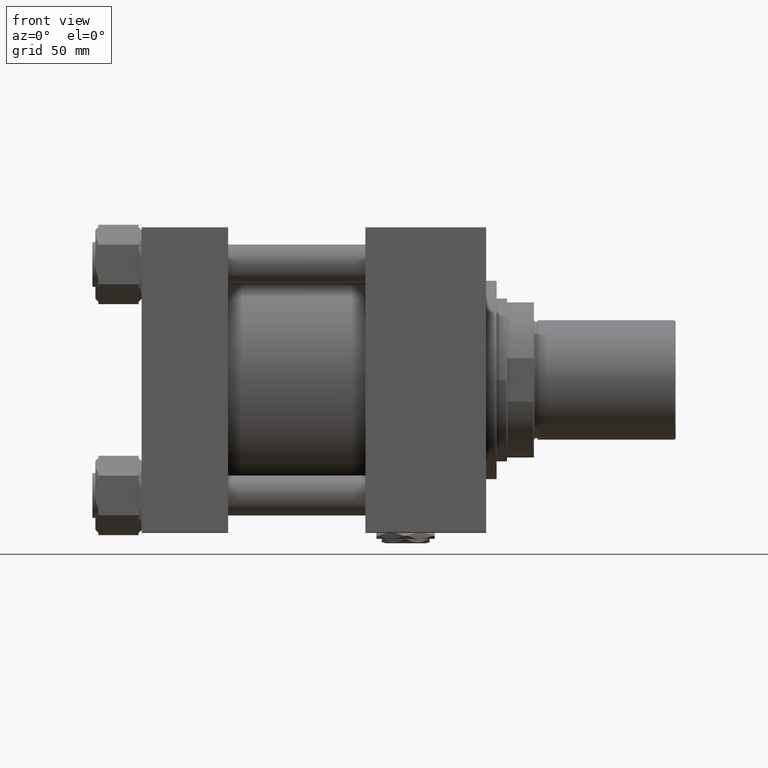
[diagram: clean part render]
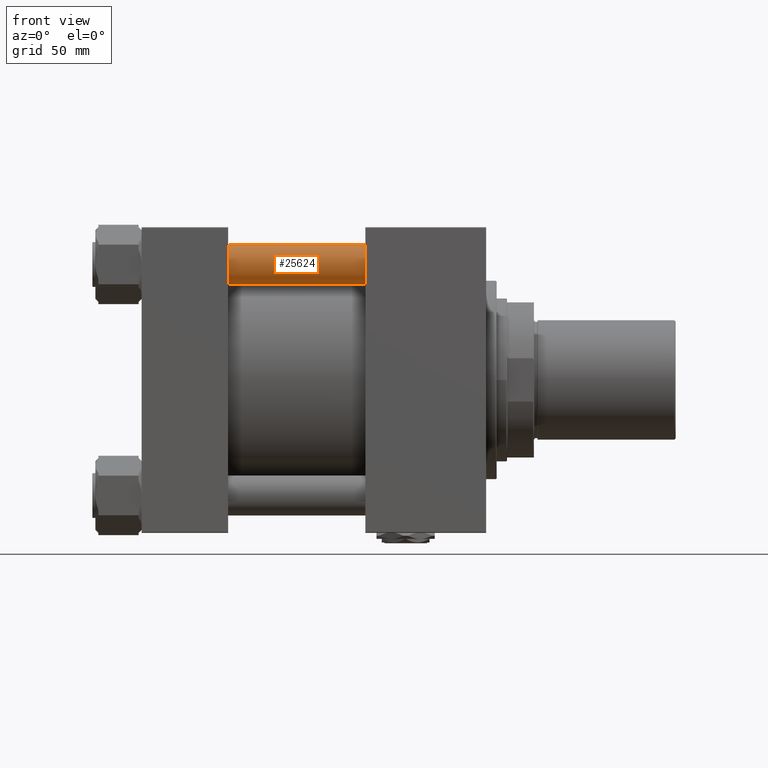
[diagram: same view with one face highlighted and labeled with its STEP entity id]
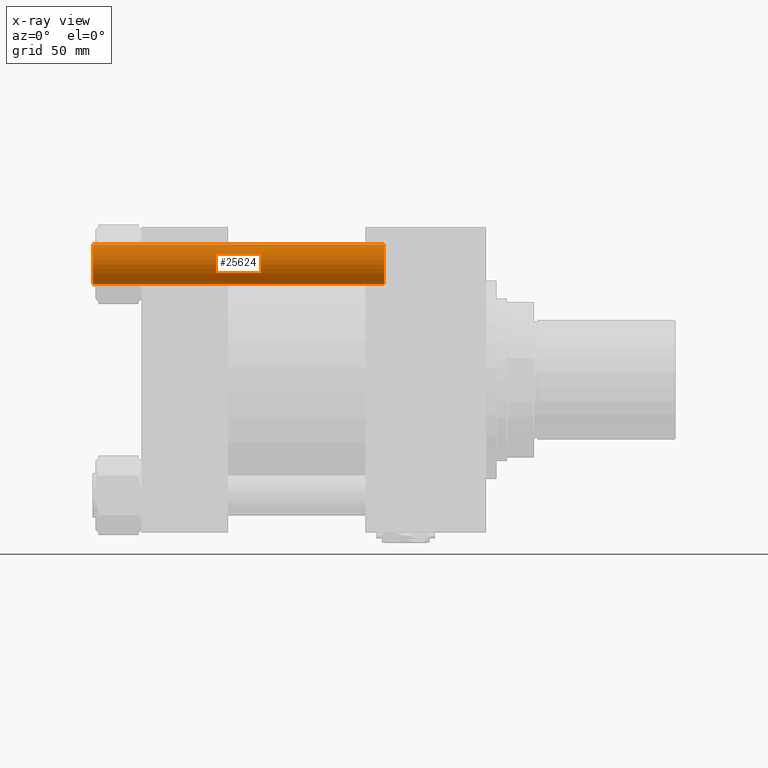
[diagram: x-ray of the same camera — body ghosted, the highlighted face saturated]
A machine part, front view. The second image highlights one B-rep face of the part: STEP entity #25624.
The next image is the same camera in x-ray: the body ghosted, the highlighted face saturated — about 0% of this face is hidden behind the body in this view.
In plain terms, the highlighted cylindrical surface (edge-blend (fillet) strip) has radius 13.5 mm, axis along (1, 0, -0).
Its self-contained STEP definition (entity closure, byte-faithful):
#1878 = DIRECTION ( 'NONE',  ( -1.000000000000000000, 0.000000000000000000, 0.000000000000000000 ) ) ;
#2020 = EDGE_LOOP ( 'NONE', ( #43403, #19182, #8719, #37262 ) ) ;
#8719 = ORIENTED_EDGE ( 'NONE', *, *, #47934, .T. ) ;
#9423 = CARTESIAN_POINT ( 'NONE',  ( -13.50000000000000000, 0.000000000000000000, 196.0000000000000000 ) ) ;
#9904 = CYLINDRICAL_SURFACE ( 'NONE', #17550, 13.50000000000000000 ) ;
#10965 = CARTESIAN_POINT ( 'NONE',  ( -13.50000000000000000, 0.000000000000000000, 0.4999999999999726885 ) ) ;
#11074 = CARTESIAN_POINT ( 'NONE',  ( 0.000000000000000000, 0.000000000000000000, 195.5000000000000284 ) ) ;
#12655 = LINE ( 'NONE', #9423, #28441 ) ;
#12931 = CIRCLE ( 'NONE', #36916, 13.50000000000000000 ) ;
#15698 = EDGE_CURVE ( 'NONE', #22703, #43596, #12655, .T. ) ;
#17550 = AXIS2_PLACEMENT_3D ( 'NONE', #37767, #50631, #1878 ) ;
#17653 = CIRCLE ( 'NONE', #39041, 13.50000000000000000 ) ;
#18854 = CARTESIAN_POINT ( 'NONE',  ( 0.000000000000000000, 0.000000000000000000, 0.4999999999999726885 ) ) ;
#19182 = ORIENTED_EDGE ( 'NONE', *, *, #39108, .T. ) ;
#22628 = VERTEX_POINT ( 'NONE', #26686 ) ;
#22703 = VERTEX_POINT ( 'NONE', #51881 ) ;
#25624 = ADVANCED_FACE ( 'NONE', ( #37507 ), #9904, .T. ) ;
#25786 = LINE ( 'NONE', #42173, #38424 ) ;
#26686 = CARTESIAN_POINT ( 'NONE',  ( 13.50000000000000000, 1.653273178848926867E-15, 0.4999999999999726885 ) ) ;
#28441 = VECTOR ( 'NONE', #49632, 1000.000000000000000 ) ;
#29335 = VERTEX_POINT ( 'NONE', #31426 ) ;
#29418 = EDGE_CURVE ( 'NONE', #22703, #29335, #17653, .T. ) ;
#30924 = DIRECTION ( 'NONE',  ( 1.000000000000000000, 0.000000000000000000, 0.000000000000000000 ) ) ;
#31426 = CARTESIAN_POINT ( 'NONE',  ( 13.50000000000000000, 1.653273178848926867E-15, 195.5000000000000284 ) ) ;
#36916 = AXIS2_PLACEMENT_3D ( 'NONE', #18854, #39771, #30924 ) ;
#37262 = ORIENTED_EDGE ( 'NONE', *, *, #15698, .F. ) ;
#37507 = FACE_OUTER_BOUND ( 'NONE', #2020, .T. ) ;
#37767 = CARTESIAN_POINT ( 'NONE',  ( 0.000000000000000000, 0.000000000000000000, 196.0000000000000000 ) ) ;
#38424 = VECTOR ( 'NONE', #50470, 1000.000000000000000 ) ;
#39041 = AXIS2_PLACEMENT_3D ( 'NONE', #11074, #40274, #39745 ) ;
#39108 = EDGE_CURVE ( 'NONE', #29335, #22628, #25786, .T. ) ;
#39745 = DIRECTION ( 'NONE',  ( 1.000000000000000000, 0.000000000000000000, 0.000000000000000000 ) ) ;
#39771 = DIRECTION ( 'NONE',  ( -0.000000000000000000, -0.000000000000000000, 1.000000000000000000 ) ) ;
#40274 = DIRECTION ( 'NONE',  ( 0.000000000000000000, 0.000000000000000000, -1.000000000000000000 ) ) ;
#42173 = CARTESIAN_POINT ( 'NONE',  ( 13.50000000000000000, 1.653273178848926867E-15, 196.0000000000000000 ) ) ;
#43403 = ORIENTED_EDGE ( 'NONE', *, *, #29418, .T. ) ;
#43596 = VERTEX_POINT ( 'NONE', #10965 ) ;
#47934 = EDGE_CURVE ( 'NONE', #22628, #43596, #12931, .T. ) ;
#49632 = DIRECTION ( 'NONE',  ( -0.000000000000000000, -0.000000000000000000, -1.000000000000000000 ) ) ;
#50470 = DIRECTION ( 'NONE',  ( -0.000000000000000000, -0.000000000000000000, -1.000000000000000000 ) ) ;
#50631 = DIRECTION ( 'NONE',  ( -0.000000000000000000, -0.000000000000000000, -1.000000000000000000 ) ) ;
#51881 = CARTESIAN_POINT ( 'NONE',  ( -13.50000000000000000, 0.000000000000000000, 195.5000000000000284 ) ) ;